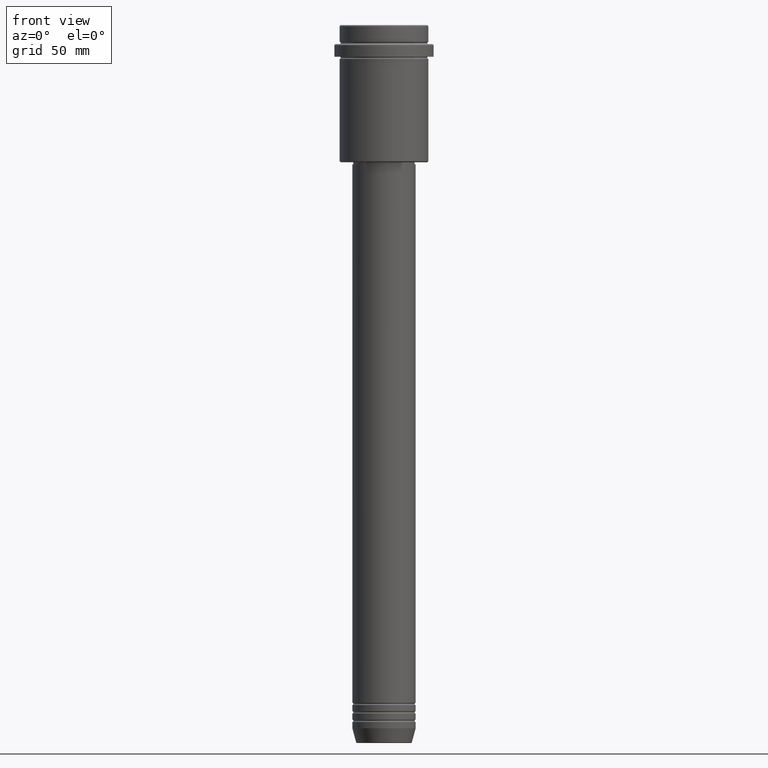
[diagram: clean part render]
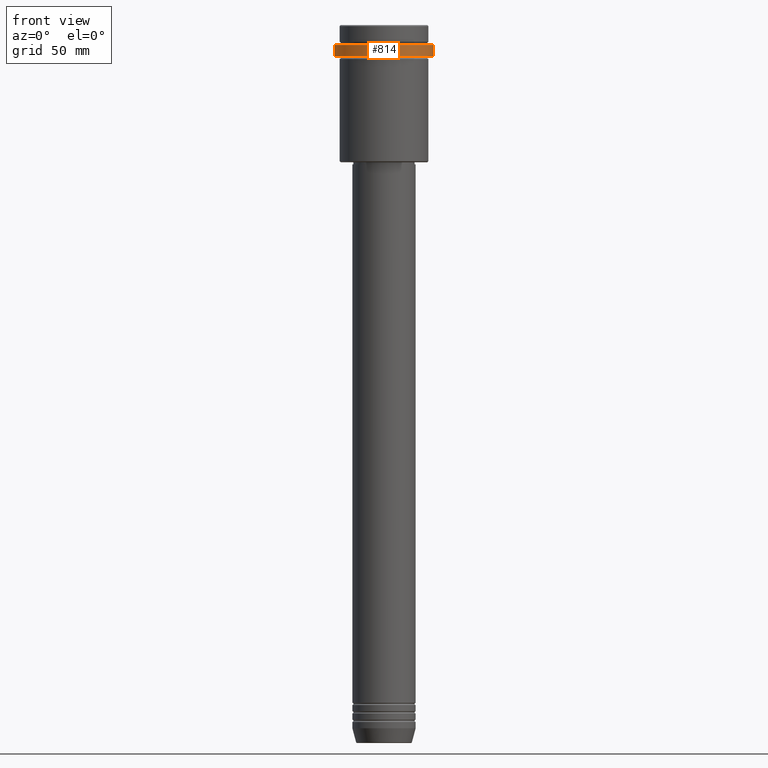
[diagram: same view with one face highlighted and labeled with its STEP entity id]
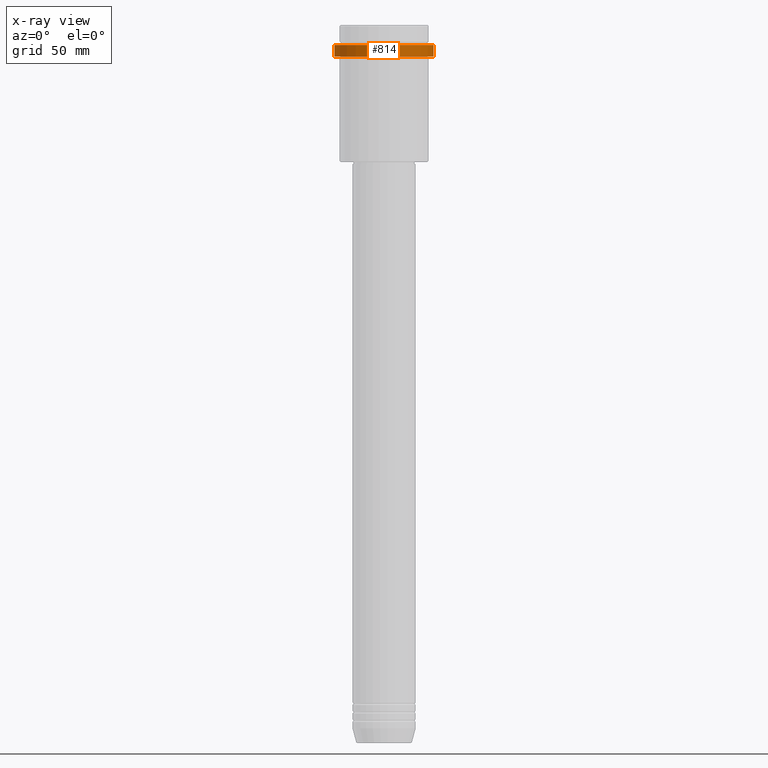
[diagram: x-ray of the same camera — body ghosted, the highlighted face saturated]
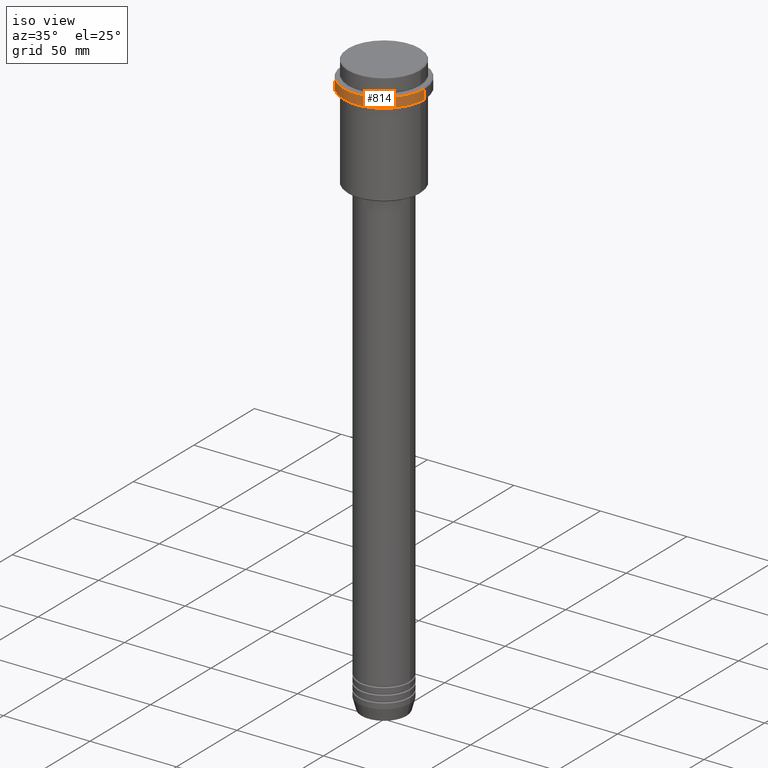
[diagram: same view with one face highlighted and labeled with its STEP entity id]
A machine part, front view. The second image highlights one B-rep face of the part: STEP entity #814.
The next image is the same camera in x-ray: the body ghosted, the highlighted face saturated — about 0% of this face is hidden behind the body in this view.
A second angle (iso view) of the same face is appended — the face is thin or edge-on in the first view.
In plain terms, the highlighted cylindrical surface (partial cylindrical patch) has radius 23.5 mm, axis along (-0, -0, 1).
Its self-contained STEP definition (entity closure, byte-faithful):
#48 = DIRECTION ( 'NONE',  ( -0.000000000000000000, -0.000000000000000000, 1.000000000000000000 ) ) ;
#134 = AXIS2_PLACEMENT_3D ( 'NONE', #485, #380, #925 ) ;
#156 = AXIS2_PLACEMENT_3D ( 'NONE', #970, #740, #531 ) ;
#212 = DIRECTION ( 'NONE',  ( -0.000000000000000000, -0.000000000000000000, 1.000000000000000000 ) ) ;
#260 = VERTEX_POINT ( 'NONE', #1135 ) ;
#261 = EDGE_CURVE ( 'NONE', #1127, #306, #1266, .T. ) ;
#305 = CARTESIAN_POINT ( 'NONE',  ( 0.000000000000000000, 0.000000000000000000, 0.000000000000000000 ) ) ;
#306 = VERTEX_POINT ( 'NONE', #942 ) ;
#332 = ORIENTED_EDGE ( 'NONE', *, *, #603, .T. ) ;
#357 = CIRCLE ( 'NONE', #134, 23.50000000000000355 ) ;
#380 = DIRECTION ( 'NONE',  ( -0.000000000000000000, -0.000000000000000000, 1.000000000000000000 ) ) ;
#485 = CARTESIAN_POINT ( 'NONE',  ( 0.000000000000000000, 0.000000000000000000, -15.00000000000000178 ) ) ;
#520 = DIRECTION ( 'NONE',  ( -0.000000000000000000, -0.000000000000000000, 1.000000000000000000 ) ) ;
#522 = DIRECTION ( 'NONE',  ( 1.000000000000000000, 0.000000000000000000, 0.000000000000000000 ) ) ;
#528 = CARTESIAN_POINT ( 'NONE',  ( -23.50000000000000000, 2.877919977996280320E-15, 0.000000000000000000 ) ) ;
#531 = DIRECTION ( 'NONE',  ( 1.000000000000000000, 0.000000000000000000, 0.000000000000000000 ) ) ;
#546 = CIRCLE ( 'NONE', #156, 23.50000000000000000 ) ;
#581 = ORIENTED_EDGE ( 'NONE', *, *, #261, .T. ) ;
#603 = EDGE_CURVE ( 'NONE', #260, #1127, #357, .T. ) ;
#625 = VERTEX_POINT ( 'NONE', #1253 ) ;
#704 = VECTOR ( 'NONE', #48, 1000.000000000000000 ) ;
#708 = AXIS2_PLACEMENT_3D ( 'NONE', #305, #212, #522 ) ;
#714 = CARTESIAN_POINT ( 'NONE',  ( 23.50000000000000000, 0.000000000000000000, 0.000000000000000000 ) ) ;
#740 = DIRECTION ( 'NONE',  ( 0.000000000000000000, 0.000000000000000000, -1.000000000000000000 ) ) ;
#771 = EDGE_CURVE ( 'NONE', #306, #625, #546, .T. ) ;
#814 = ADVANCED_FACE ( 'NONE', ( #1307 ), #1069, .T. ) ;
#917 = ORIENTED_EDGE ( 'NONE', *, *, #771, .T. ) ;
#925 = DIRECTION ( 'NONE',  ( 1.000000000000000000, 0.000000000000000000, 0.000000000000000000 ) ) ;
#942 = CARTESIAN_POINT ( 'NONE',  ( 23.50000000000000000, 0.000000000000000000, -9.499999999999973355 ) ) ;
#967 = LINE ( 'NONE', #528, #1060 ) ;
#970 = CARTESIAN_POINT ( 'NONE',  ( 0.000000000000000000, 0.000000000000000000, -9.499999999999973355 ) ) ;
#1060 = VECTOR ( 'NONE', #520, 1000.000000000000000 ) ;
#1069 = CYLINDRICAL_SURFACE ( 'NONE', #708, 23.50000000000000000 ) ;
#1087 = EDGE_LOOP ( 'NONE', ( #1329, #332, #581, #917 ) ) ;
#1127 = VERTEX_POINT ( 'NONE', #1187 ) ;
#1135 = CARTESIAN_POINT ( 'NONE',  ( -23.50000000000000711, 2.877919977996281109E-15, -15.00000000000000178 ) ) ;
#1187 = CARTESIAN_POINT ( 'NONE',  ( 23.50000000000000355, 0.000000000000000000, -15.00000000000000178 ) ) ;
#1218 = EDGE_CURVE ( 'NONE', #260, #625, #967, .T. ) ;
#1253 = CARTESIAN_POINT ( 'NONE',  ( -23.50000000000000000, 2.877919977996280320E-15, -9.499999999999973355 ) ) ;
#1266 = LINE ( 'NONE', #714, #704 ) ;
#1307 = FACE_OUTER_BOUND ( 'NONE', #1087, .T. ) ;
#1329 = ORIENTED_EDGE ( 'NONE', *, *, #1218, .F. ) ;